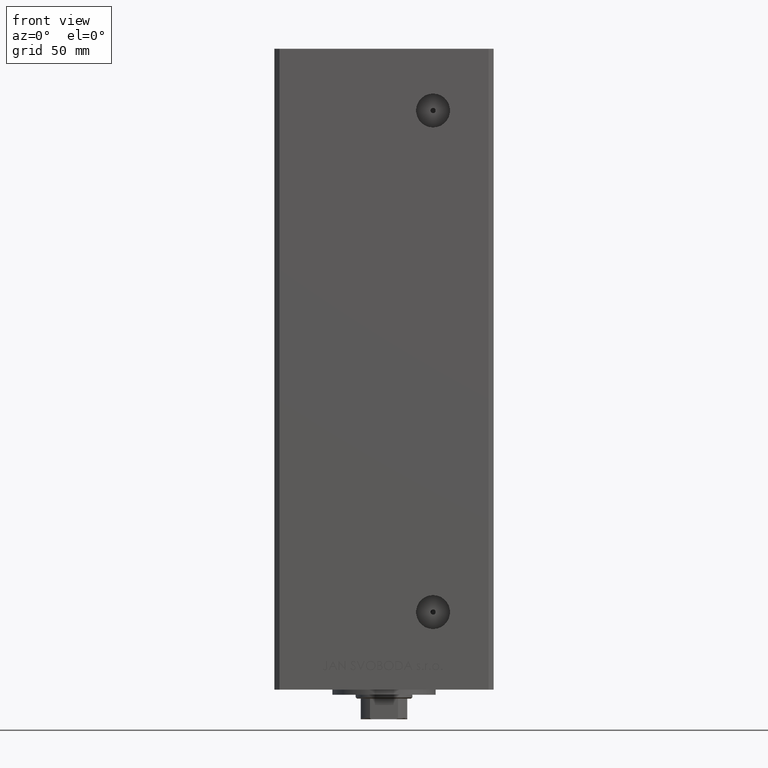
[diagram: clean part render]
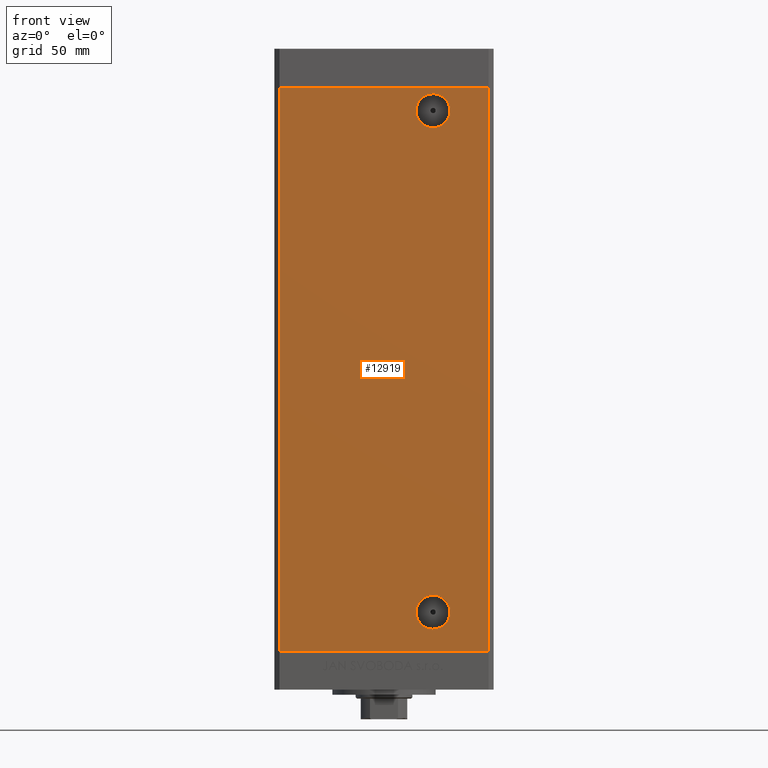
[diagram: same view with one face highlighted and labeled with its STEP entity id]
A machine part, front view. The second image highlights one B-rep face of the part: STEP entity #12919.
In plain terms, the highlighted planar face has unit normal (0, 1, 0).
Its self-contained STEP definition (entity closure, byte-faithful):
#193 = CARTESIAN_POINT ( 'NONE',  ( 40.49999999999998579, -37.50000000000000711, 0.000000000000000000 ) ) ;
#611 = DIRECTION ( 'NONE',  ( 0.000000000000000000, 0.000000000000000000, -1.000000000000000000 ) ) ;
#757 = CARTESIAN_POINT ( 'NONE',  ( 18.99999999999996447, -37.50000000000000711, 209.5000000000000000 ) ) ;
#1121 = DIRECTION ( 'NONE',  ( 0.000000000000000000, 0.000000000000000000, -1.000000000000000000 ) ) ;
#1222 = VERTEX_POINT ( 'NONE', #9381 ) ;
#1411 = CARTESIAN_POINT ( 'NONE',  ( -40.49999999999998579, -37.50000000000000711, 218.5000000000000000 ) ) ;
#1421 = CIRCLE ( 'NONE', #48754, 6.579999999999999183 ) ;
#1459 = LINE ( 'NONE', #23847, #7251 ) ;
#1856 = CARTESIAN_POINT ( 'NONE',  ( 18.99999999999998934, -37.50000000000000711, 14.99999999999998579 ) ) ;
#3010 = CARTESIAN_POINT ( 'NONE',  ( 18.99999999999998934, -37.50000000000000711, 8.419999999999985718 ) ) ;
#3036 = VECTOR ( 'NONE', #39153, 1000.000000000000000 ) ;
#3489 = AXIS2_PLACEMENT_3D ( 'NONE', #757, #42996, #35953 ) ;
#3582 = VERTEX_POINT ( 'NONE', #41666 ) ;
#4625 = EDGE_CURVE ( 'NONE', #22593, #3582, #49399, .T. ) ;
#5190 = DIRECTION ( 'NONE',  ( 0.000000000000000000, 1.000000000000000000, 0.000000000000000000 ) ) ;
#7251 = VECTOR ( 'NONE', #20082, 1000.000000000000000 ) ;
#7764 = EDGE_CURVE ( 'NONE', #39198, #1222, #13100, .T. ) ;
#7877 = CIRCLE ( 'NONE', #28724, 6.579999999999999183 ) ;
#7979 = VERTEX_POINT ( 'NONE', #14815 ) ;
#8009 = CARTESIAN_POINT ( 'NONE',  ( 18.99999999999996447, -37.50000000000000711, 216.0799999999999841 ) ) ;
#8450 = ORIENTED_EDGE ( 'NONE', *, *, #7764, .T. ) ;
#9052 = CARTESIAN_POINT ( 'NONE',  ( 40.49999999999998579, -37.50000000000000711, 218.5000000000000000 ) ) ;
#9218 = PLANE ( 'NONE',  #35753 ) ;
#9381 = CARTESIAN_POINT ( 'NONE',  ( 18.99999999999996447, -37.50000000000000711, 202.9199999999999875 ) ) ;
#10694 = CARTESIAN_POINT ( 'NONE',  ( -40.49999999999998579, -37.50000000000000711, 218.5000000000000000 ) ) ;
#12629 = EDGE_LOOP ( 'NONE', ( #30757, #8450 ) ) ;
#12919 = ADVANCED_FACE ( 'NONE', ( #46932, #15777, #39650 ), #9218, .F. ) ;
#13100 = CIRCLE ( 'NONE', #3489, 6.580000000000002736 ) ;
#14815 = CARTESIAN_POINT ( 'NONE',  ( 18.99999999999998934, -37.50000000000000711, 21.57999999999998408 ) ) ;
#15475 = CARTESIAN_POINT ( 'NONE',  ( 18.99999999999998934, -37.50000000000000711, 14.99999999999998579 ) ) ;
#15777 = FACE_OUTER_BOUND ( 'NONE', #22690, .T. ) ;
#16284 = CARTESIAN_POINT ( 'NONE',  ( -40.49999999999998579, -37.50000000000000711, 218.5000000000000000 ) ) ;
#17390 = VECTOR ( 'NONE', #49767, 1000.000000000000000 ) ;
#17450 = VERTEX_POINT ( 'NONE', #193 ) ;
#20082 = DIRECTION ( 'NONE',  ( -0.000000000000000000, -0.000000000000000000, -1.000000000000000000 ) ) ;
#20137 = EDGE_CURVE ( 'NONE', #3582, #17450, #35187, .T. ) ;
#20442 = ORIENTED_EDGE ( 'NONE', *, *, #49477, .F. ) ;
#20929 = AXIS2_PLACEMENT_3D ( 'NONE', #29646, #26129, #33428 ) ;
#22016 = DIRECTION ( 'NONE',  ( -0.000000000000000000, -0.000000000000000000, -1.000000000000000000 ) ) ;
#22373 = EDGE_CURVE ( 'NONE', #7979, #38358, #1421, .T. ) ;
#22579 = ORIENTED_EDGE ( 'NONE', *, *, #23428, .F. ) ;
#22593 = VERTEX_POINT ( 'NONE', #36792 ) ;
#22690 = EDGE_LOOP ( 'NONE', ( #27741, #20442, #22699, #36588 ) ) ;
#22699 = ORIENTED_EDGE ( 'NONE', *, *, #23097, .F. ) ;
#23097 = EDGE_CURVE ( 'NONE', #22593, #34048, #28569, .T. ) ;
#23428 = EDGE_CURVE ( 'NONE', #38358, #7979, #7877, .T. ) ;
#23847 = CARTESIAN_POINT ( 'NONE',  ( 40.49999999999998579, -37.50000000000000711, 218.5000000000000000 ) ) ;
#26129 = DIRECTION ( 'NONE',  ( -0.000000000000000000, 1.000000000000000000, -0.000000000000000000 ) ) ;
#27741 = ORIENTED_EDGE ( 'NONE', *, *, #20137, .T. ) ;
#28262 = DIRECTION ( 'NONE',  ( 0.000000000000000000, -1.000000000000000000, 0.000000000000000000 ) ) ;
#28569 = LINE ( 'NONE', #16284, #3036 ) ;
#28724 = AXIS2_PLACEMENT_3D ( 'NONE', #1856, #35826, #1121 ) ;
#28962 = CIRCLE ( 'NONE', #20929, 6.580000000000002736 ) ;
#29646 = CARTESIAN_POINT ( 'NONE',  ( 18.99999999999996447, -37.50000000000000711, 209.5000000000000000 ) ) ;
#30757 = ORIENTED_EDGE ( 'NONE', *, *, #39120, .T. ) ;
#33428 = DIRECTION ( 'NONE',  ( 0.000000000000000000, 0.000000000000000000, -1.000000000000000000 ) ) ;
#34048 = VERTEX_POINT ( 'NONE', #9052 ) ;
#35187 = LINE ( 'NONE', #38472, #17390 ) ;
#35753 = AXIS2_PLACEMENT_3D ( 'NONE', #1411, #5190, #39141 ) ;
#35826 = DIRECTION ( 'NONE',  ( 0.000000000000000000, -1.000000000000000000, 0.000000000000000000 ) ) ;
#35953 = DIRECTION ( 'NONE',  ( 0.000000000000000000, 0.000000000000000000, -1.000000000000000000 ) ) ;
#36588 = ORIENTED_EDGE ( 'NONE', *, *, #4625, .T. ) ;
#36792 = CARTESIAN_POINT ( 'NONE',  ( -40.49999999999998579, -37.50000000000000711, 218.5000000000000000 ) ) ;
#37507 = ORIENTED_EDGE ( 'NONE', *, *, #22373, .F. ) ;
#38358 = VERTEX_POINT ( 'NONE', #3010 ) ;
#38472 = CARTESIAN_POINT ( 'NONE',  ( -40.49999999999998579, -37.50000000000000711, 0.000000000000000000 ) ) ;
#39120 = EDGE_CURVE ( 'NONE', #1222, #39198, #28962, .T. ) ;
#39141 = DIRECTION ( 'NONE',  ( 0.000000000000000000, -0.000000000000000000, 1.000000000000000000 ) ) ;
#39153 = DIRECTION ( 'NONE',  ( 1.000000000000000000, 0.000000000000000000, 0.000000000000000000 ) ) ;
#39159 = EDGE_LOOP ( 'NONE', ( #22579, #37507 ) ) ;
#39198 = VERTEX_POINT ( 'NONE', #8009 ) ;
#39650 = FACE_BOUND ( 'NONE', #12629, .T. ) ;
#41666 = CARTESIAN_POINT ( 'NONE',  ( -40.49999999999998579, -37.50000000000000711, 0.000000000000000000 ) ) ;
#42996 = DIRECTION ( 'NONE',  ( -0.000000000000000000, 1.000000000000000000, -0.000000000000000000 ) ) ;
#46735 = VECTOR ( 'NONE', #22016, 1000.000000000000000 ) ;
#46932 = FACE_BOUND ( 'NONE', #39159, .T. ) ;
#48754 = AXIS2_PLACEMENT_3D ( 'NONE', #15475, #28262, #611 ) ;
#49399 = LINE ( 'NONE', #10694, #46735 ) ;
#49477 = EDGE_CURVE ( 'NONE', #34048, #17450, #1459, .T. ) ;
#49767 = DIRECTION ( 'NONE',  ( 1.000000000000000000, 0.000000000000000000, 0.000000000000000000 ) ) ;